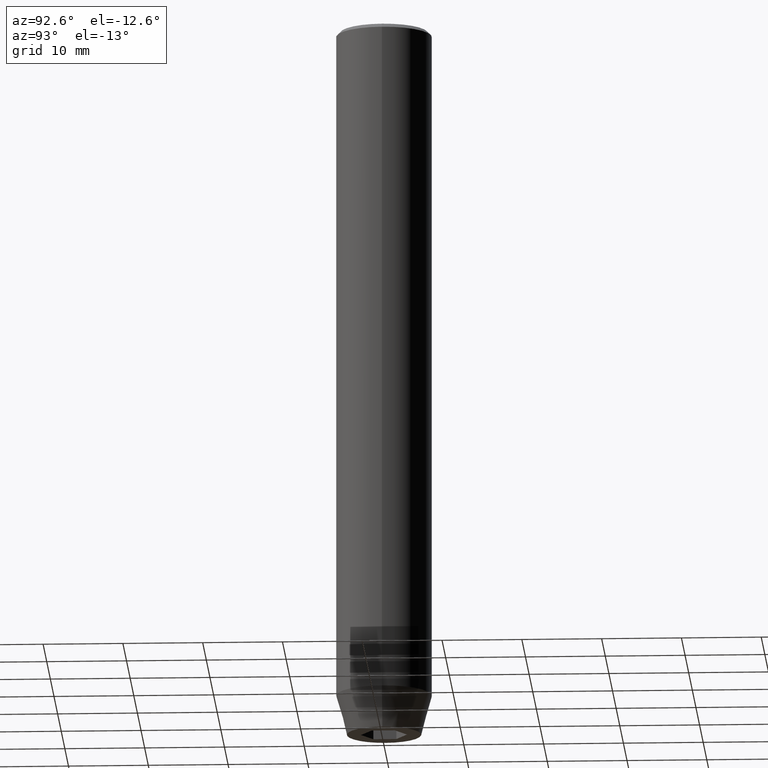
[diagram: clean part render]
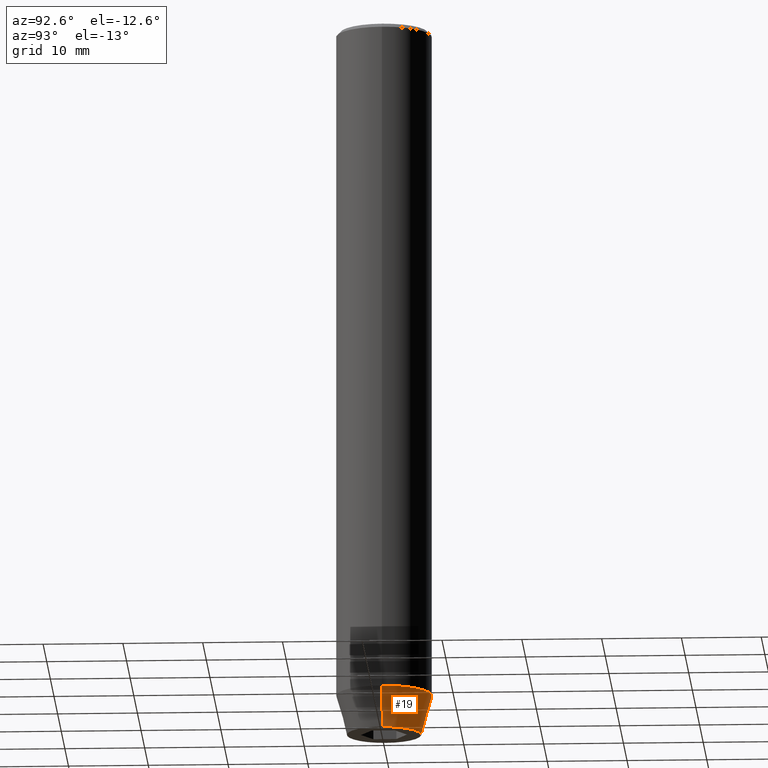
[diagram: same view with one face highlighted and labeled with its STEP entity id]
A machine part, auxiliary view. The second image highlights one B-rep face of the part: STEP entity #19.
In plain terms, the highlighted conical surface has half-angle 15 deg.
Its self-contained STEP definition (entity closure, byte-faithful):
#19 = ADVANCED_FACE ( 'NONE', ( #175 ), #226, .T. ) ;
#85 = VERTEX_POINT ( 'NONE', #220 ) ;
#115 = DIRECTION ( 'NONE',  ( -0.000000000000000000, -0.000000000000000000, 1.000000000000000000 ) ) ;
#122 = ORIENTED_EDGE ( 'NONE', *, *, #269, .T. ) ;
#144 = AXIS2_PLACEMENT_3D ( 'NONE', #357, #115, #181 ) ;
#148 = CARTESIAN_POINT ( 'NONE',  ( -6.000000000000000000, 7.347880794884119736E-16, -84.99999999999998579 ) ) ;
#159 = LINE ( 'NONE', #148, #425 ) ;
#161 = CIRCLE ( 'NONE', #198, 4.660254037844381081 ) ;
#171 = ORIENTED_EDGE ( 'NONE', *, *, #318, .F. ) ;
#173 = EDGE_CURVE ( 'NONE', #85, #439, #159, .T. ) ;
#175 = FACE_OUTER_BOUND ( 'NONE', #251, .T. ) ;
#181 = DIRECTION ( 'NONE',  ( 1.000000000000000000, 0.000000000000000000, 0.000000000000000000 ) ) ;
#185 = CARTESIAN_POINT ( 'NONE',  ( 6.000000000000000000, 0.000000000000000000, -84.99999999999998579 ) ) ;
#192 = DIRECTION ( 'NONE',  ( -0.2588190451025214611, 3.169619151431774186E-17, 0.9659258262890679791 ) ) ;
#198 = AXIS2_PLACEMENT_3D ( 'NONE', #282, #247, #464 ) ;
#220 = CARTESIAN_POINT ( 'NONE',  ( -4.660254037844381081, 6.527522992771884330E-16, -90.00000000000000000 ) ) ;
#226 = CONICAL_SURFACE ( 'NONE', #144, 6.000000000000000000, 0.2617993877991502405 ) ;
#247 = DIRECTION ( 'NONE',  ( -0.000000000000000000, -0.000000000000000000, 1.000000000000000000 ) ) ;
#251 = EDGE_LOOP ( 'NONE', ( #122, #442, #469, #171 ) ) ;
#259 = DIRECTION ( 'NONE',  ( 0.2588190451025214611, 0.000000000000000000, 0.9659258262890679791 ) ) ;
#269 = EDGE_CURVE ( 'NONE', #392, #85, #161, .T. ) ;
#275 = VECTOR ( 'NONE', #259, 1000.000000000000114 ) ;
#282 = CARTESIAN_POINT ( 'NONE',  ( 0.000000000000000000, 0.000000000000000000, -90.00000000000000000 ) ) ;
#294 = EDGE_CURVE ( 'NONE', #550, #439, #581, .T. ) ;
#303 = CARTESIAN_POINT ( 'NONE',  ( 4.660254037844381081, 0.000000000000000000, -90.00000000000000000 ) ) ;
#318 = EDGE_CURVE ( 'NONE', #392, #550, #336, .T. ) ;
#332 = AXIS2_PLACEMENT_3D ( 'NONE', #417, #516, #470 ) ;
#336 = LINE ( 'NONE', #522, #275 ) ;
#343 = CARTESIAN_POINT ( 'NONE',  ( -6.000000000000000000, 7.347880794884119736E-16, -84.99999999999998579 ) ) ;
#357 = CARTESIAN_POINT ( 'NONE',  ( 0.000000000000000000, 0.000000000000000000, -84.99999999999998579 ) ) ;
#392 = VERTEX_POINT ( 'NONE', #303 ) ;
#417 = CARTESIAN_POINT ( 'NONE',  ( 0.000000000000000000, 0.000000000000000000, -84.99999999999998579 ) ) ;
#425 = VECTOR ( 'NONE', #192, 1000.000000000000114 ) ;
#439 = VERTEX_POINT ( 'NONE', #343 ) ;
#442 = ORIENTED_EDGE ( 'NONE', *, *, #173, .T. ) ;
#464 = DIRECTION ( 'NONE',  ( 1.000000000000000000, 0.000000000000000000, 0.000000000000000000 ) ) ;
#469 = ORIENTED_EDGE ( 'NONE', *, *, #294, .F. ) ;
#470 = DIRECTION ( 'NONE',  ( 1.000000000000000000, 0.000000000000000000, 0.000000000000000000 ) ) ;
#516 = DIRECTION ( 'NONE',  ( -0.000000000000000000, -0.000000000000000000, 1.000000000000000000 ) ) ;
#522 = CARTESIAN_POINT ( 'NONE',  ( 6.000000000000000000, 0.000000000000000000, -84.99999999999998579 ) ) ;
#550 = VERTEX_POINT ( 'NONE', #185 ) ;
#581 = CIRCLE ( 'NONE', #332, 6.000000000000000000 ) ;